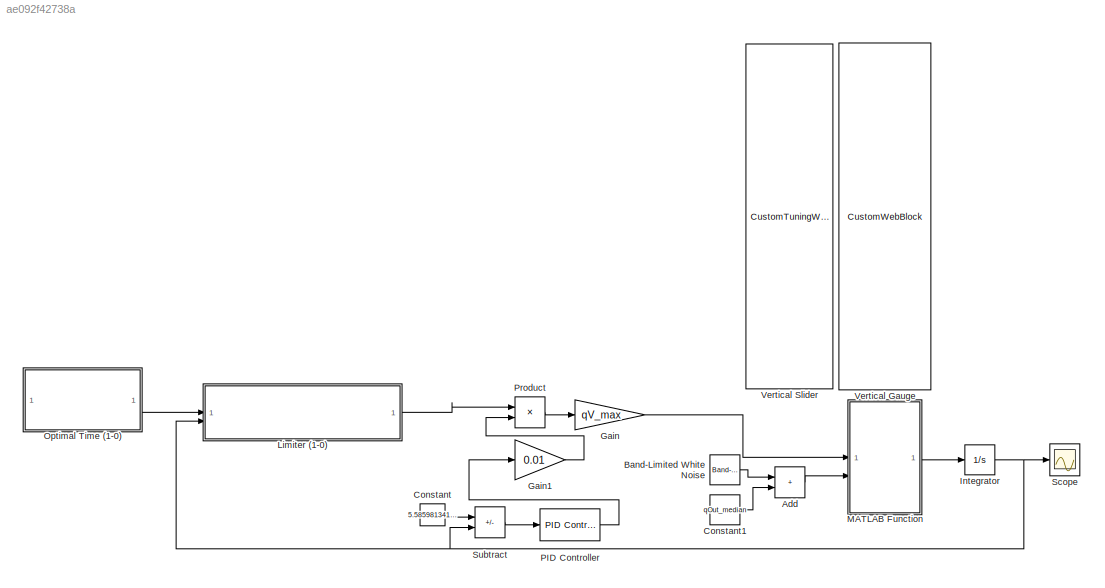
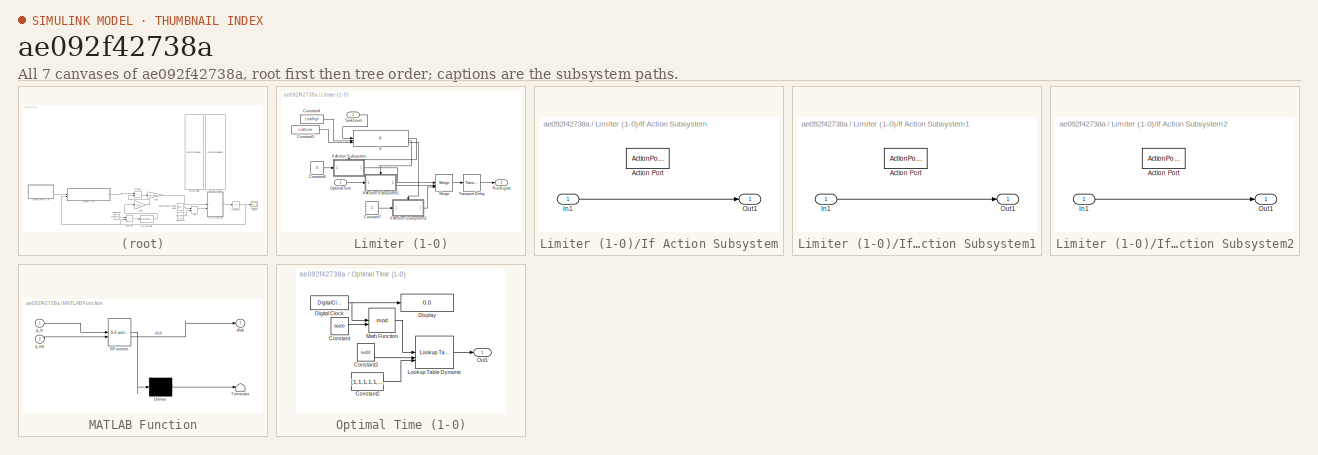
[diagram: thumbnail index - all 7 canvases of the model, root first then tree order]
MODEL slx_ae092f42738a
KIND model
CONFIG AbsTol = auto
CONFIG EnableMultiTasking = off
CONFIG FixedStep = auto
CONFIG MaxStep = auto
CONFIG MinStep = auto
CONFIG RelTol = 1e-3
CONFIG SampleTimeConstraint = Unconstrained
CONFIG SolverName = ode4
CONFIG StartTime = 0.0
CONFIG StopTime = inf
BLOCK [Sum] Add
  IconShape = rectangular
BLOCK [Reference] Band-Limited White Noise  REF=simulink/Sources/Band-Limited
White Noise
  SourceBlock = simulink/Sources/Band-Limited\nWhite Noise
  SourceType = Band-Limited White Noise.
BLOCK [Constant] Constant
  Value = 5.585981341189675
BLOCK [Constant] Constant1
  Value = qOut_median
BLOCK [Gain] Gain
  Gain = qV_max
BLOCK [Gain] Gain1
  Gain = 0.01
BLOCK [Integrator] Integrator
  InitialCondition = 2.5
  LimitOutput = on
  LowerSaturationLimit = 0
  UpperSaturationLimit = 7
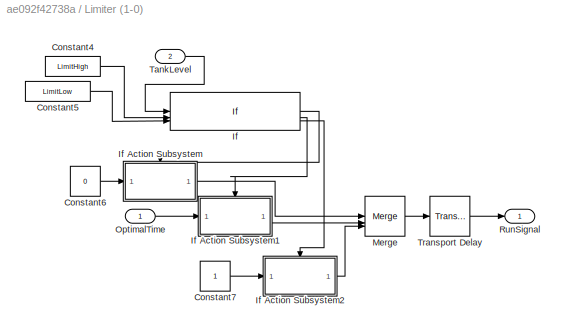
BLOCK [SubSystem] Limiter (1-0)
BLOCK [Constant] Limiter (1-0)/Constant4
  Value = LimitHigh
BLOCK [Constant] Limiter (1-0)/Constant5
  Value = LimitLow
BLOCK [Constant] Limiter (1-0)/Constant6
  Value = 0
BLOCK [Constant] Limiter (1-0)/Constant7
BLOCK [If] Limiter (1-0)/If
  ElseIfExpressions = u1 <= u2 & u1 > u3, u1 <= u3
  IfExpression = u1 > u2
  NumInputs = 3
BLOCK [SubSystem] Limiter (1-0)/If Action Subsystem
  TreatAsAtomicUnit = on
BLOCK [ActionPort] Limiter (1-0)/If Action Subsystem/Action Port
  ActionPortLabel = if(u1 > u2)
BLOCK [Inport] Limiter (1-0)/If Action Subsystem/In1
BLOCK [Outport] Limiter (1-0)/If Action Subsystem/Out1
BLOCK [SubSystem] Limiter (1-0)/If Action Subsystem1
  TreatAsAtomicUnit = on
BLOCK [ActionPort] Limiter (1-0)/If Action Subsystem1/Action Port
  ActionPortLabel = elseif(u1 <= u2 & u1 > u3)
BLOCK [Inport] Limiter (1-0)/If Action Subsystem1/In1
BLOCK [Outport] Limiter (1-0)/If Action Subsystem1/Out1
BLOCK [SubSystem] Limiter (1-0)/If Action Subsystem2
  TreatAsAtomicUnit = on
BLOCK [ActionPort] Limiter (1-0)/If Action Subsystem2/Action Port
  ActionPortLabel = elseif( u1 <= u3)
BLOCK [Inport] Limiter (1-0)/If Action Subsystem2/In1
BLOCK [Outport] Limiter (1-0)/If Action Subsystem2/Out1
BLOCK [Merge] Limiter (1-0)/Merge
  Inputs = 3
BLOCK [Inport] Limiter (1-0)/OptimalTime
BLOCK [Outport] Limiter (1-0)/RunSignal
BLOCK [Inport] Limiter (1-0)/TankLevel
  Port = 2
BLOCK [TransportDelay] Limiter (1-0)/Transport Delay
  DelayTime = 1000
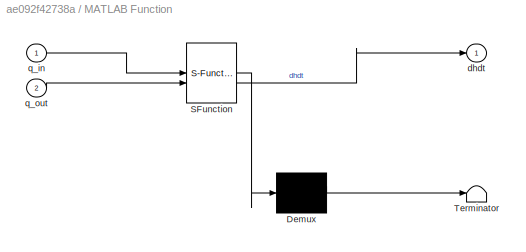
BLOCK [SubSystem] MATLAB Function
  ErrorFcn = Stateflow.Translate.translate
  PermitHierarchicalResolution = ExplicitOnly
  SFBlockType = MATLAB Function
  TreatAsAtomicUnit = on
BLOCK [Demux] MATLAB Function/ Demux 
  Outputs = 1
BLOCK [S-Function] MATLAB Function/ SFunction 
  EnableBusSupport = on
  FunctionName = sf_sfun
  Parameters = A
  PortCounts = [2 2]
  SFcnIsStateOwnerBlock = off
  SFunctionDeploymentMode = off
  Tag = Stateflow S-Function 2
BLOCK [Terminator] MATLAB Function/ Terminator 
BLOCK [Outport] MATLAB Function/dhdt
BLOCK [Inport] MATLAB Function/q_in
BLOCK [Inport] MATLAB Function/q_out
  Port = 2
BLOCK [SubSystem] Optimal Time (1-0)
BLOCK [Constant] Optimal Time (1-0)/Constant
  Value = 86400
BLOCK [Constant] Optimal Time (1-0)/Constant2
  Value = [1,1,1,1,1,1,1,1,1,1,1,1,1,1,1,1,1,0,0,0,0,0,0,0]
BLOCK [Constant] Optimal Time (1-0)/Constant3
  Value = list24
BLOCK [DigitalClock] Optimal Time (1-0)/Digital Clock
BLOCK [Display] Optimal Time (1-0)/Display
  Decimation = 1
  Format = long
BLOCK [Reference] Optimal Time (1-0)/Lookup Table Dynamic  REF=simulink/Lookup
Tables/Lookup
Table
Dynamic
  SourceBlock = simulink/Lookup\nTables/Lookup\nTable\nDynamic
  SourceType = Lookup Table Dynamic
BLOCK [Math] Optimal Time (1-0)/Math Function
  Operator = mod
BLOCK [Outport] Optimal Time (1-0)/Out1
BLOCK [Reference] PID Controller  REF=slpidlib/PID Controller
  LibrarySourceBlock = simulink/Continuous/PID Controller
  SourceBlock = slpidlib/PID Controller
  SourceType = PID 1dof
BLOCK [Product] Product
BLOCK [Scope] Scope
  Floating = off
  NumInputPorts = 1
  ScopeSpecificationString = Simulink.scopes.TimeScopeBlockCfg('CurrentConfiguration', extmgr.ConfigurationSet(extmgr.Configuration('Core','General UI',true),extmgr.Configuration('Core','Source UI',true),extmgr.Configuration('Sources','WiredSimulink',true),extmgr.Configuration('Visuals','Time Domain',true,'SerializedDisplays',{struct('MinYLimReal','0','MaxYLimReal','1','YLabelReal','','MinYLimMag','0.05315','MaxYLimMag','0.05...<+1442ch>
BLOCK [Sum] Subtract
  IconShape = rectangular
  Inputs = +-
BLOCK [CustomWebBlock] Vertical Gauge
  Configuration = {"components":[{"name":"LinearScaleComponent","settings":{"bounds":{"max":7,"min":0,"tickInterval":"auto"},"internalTickHeightScaleFactor":0.5,"labelColor":[255,255,200],"labelFont":{"font":"Arial","fontSize":12},"labelOffset":0.05,"labelTransparency":1,"needleImage":{"size":[21,75],"src":"data:image\/svg+xml;base64,PHN2ZyB4bWxucz0iaHR0cDovL3d3dy53My5vcmcvMjAwMC9zdmciIHhtbG5zOnhsaW5rPSJodHRwOi8vd3...<+4595ch>
  LabelPosition = Hide
  ShowInitialText = on
BLOCK [CustomTuningWebBlock] Vertical Slider
  Configuration = {"components":[{"name":"LinearScaleComponent","settings":{"bounds":{"max":7,"min":0,"tickInterval":"auto"},"internalTickHeightScaleFactor":0.5,"labelColor":[255,255,200],"labelFont":{"font":"Arial","fontSize":12},"labelOffset":0.05,"labelTransparency":1,"needleImage":{"size":[596,842],"src":"data:image\/svg+xml;base64,PD94bWwgdmVyc2lvbj0iMS4wIiBlbmNvZGluZz0idXRmLTgiPz4NCjwhLS0gR2VuZXJhdG9yOiBBZG9i...<+5485ch>
  LabelPosition = Hide
  ShowInitialText = on
LINE Add:1 -> MATLAB Function:2
LINE Band-Limited White Noise:1 -> Add:1
LINE Constant1:1 -> Add:2
LINE Constant:1 -> Subtract:1
LINE Gain1:1 -> Product:2
LINE Gain:1 -> MATLAB Function:1
NET Integrator:1 -> Limiter (1-0):2, Scope:1, Subtract:2
LINE Limiter (1-0)/Constant4:1 -> Limiter (1-0)/If:2
LINE Limiter (1-0)/Constant5:1 -> Limiter (1-0)/If:3
LINE Limiter (1-0)/Constant6:1 -> Limiter (1-0)/If Action Subsystem:1
LINE Limiter (1-0)/Constant7:1 -> Limiter (1-0)/If Action Subsystem2:1
LINE Limiter (1-0)/If Action Subsystem/In1:1 -> Limiter (1-0)/If Action Subsystem/Out1:1
LINE Limiter (1-0)/If Action Subsystem1/In1:1 -> Limiter (1-0)/If Action Subsystem1/Out1:1
LINE Limiter (1-0)/If Action Subsystem1:1 -> Limiter (1-0)/Merge:2
LINE Limiter (1-0)/If Action Subsystem2/In1:1 -> Limiter (1-0)/If Action Subsystem2/Out1:1
LINE Limiter (1-0)/If Action Subsystem2:1 -> Limiter (1-0)/Merge:3
LINE Limiter (1-0)/If Action Subsystem:1 -> Limiter (1-0)/Merge:1
LINE Limiter (1-0)/If:1 -> Limiter (1-0)/If Action Subsystem:ifaction
LINE Limiter (1-0)/If:2 -> Limiter (1-0)/If Action Subsystem1:ifaction
LINE Limiter (1-0)/If:3 -> Limiter (1-0)/If Action Subsystem2:ifaction
LINE Limiter (1-0)/Merge:1 -> Limiter (1-0)/Transport Delay:1
LINE Limiter (1-0)/OptimalTime:1 -> Limiter (1-0)/If Action Subsystem1:1
LINE Limiter (1-0)/TankLevel:1 -> Limiter (1-0)/If:1
LINE Limiter (1-0)/Transport Delay:1 -> Limiter (1-0)/RunSignal:1
LINE Limiter (1-0):1 -> Product:1
LINE MATLAB Function:1 -> Integrator:1
LINE Optimal Time (1-0)/Constant2:1 -> Optimal Time (1-0)/Lookup Table Dynamic:3
LINE Optimal Time (1-0)/Constant3:1 -> Optimal Time (1-0)/Lookup Table Dynamic:2
LINE Optimal Time (1-0)/Constant:1 -> Optimal Time (1-0)/Math Function:2
NET Optimal Time (1-0)/Digital Clock:1 -> Optimal Time (1-0)/Display:1, Optimal Time (1-0)/Math Function:1
LINE Optimal Time (1-0)/Lookup Table Dynamic:1 -> Optimal Time (1-0)/Out1:1
LINE Optimal Time (1-0)/Math Function:1 -> Optimal Time (1-0)/Lookup Table Dynamic:1
LINE Optimal Time (1-0):1 -> Limiter (1-0):1
LINE PID Controller:1 -> Gain1:1
LINE Product:1 -> Gain:1
LINE Subtract:1 -> PID Controller:1
note: NET lines group one-source signal fan-out (src -> all destinations, sorted); 1:1 wires keep LINE
CHART MATLAB Function states=1 transitions=1
  STATE_LABEL 'eML_blk_kernel()'
  STATE_LABEL 'SCRIPT:\nfunction dhdt = TankLevel(q_in,q_out, A)\n\ndhdt = (1/A)*(q_in-q_out);\n'
CHART  states=0 transitions=0
